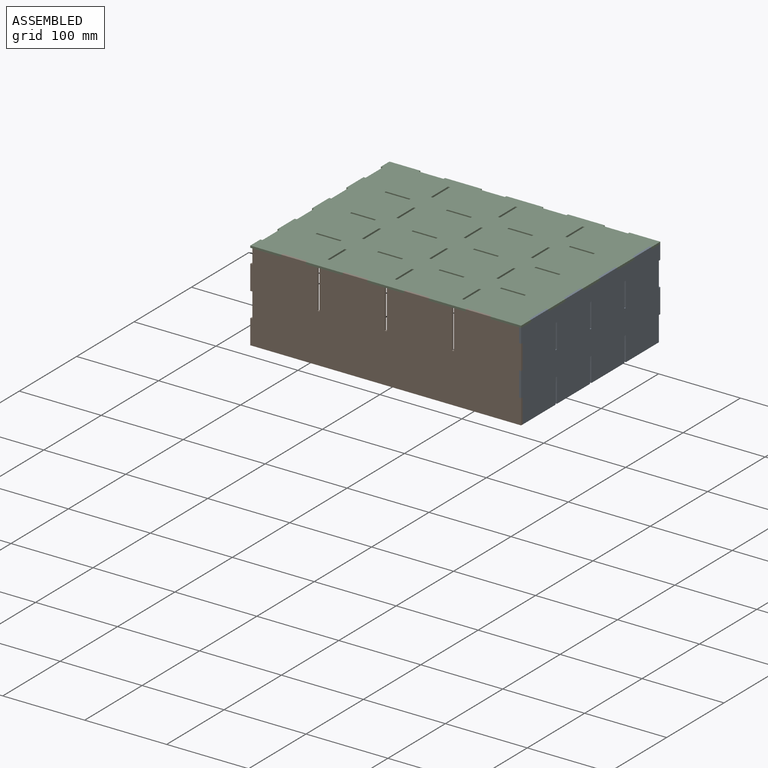
[diagram: assembled view]
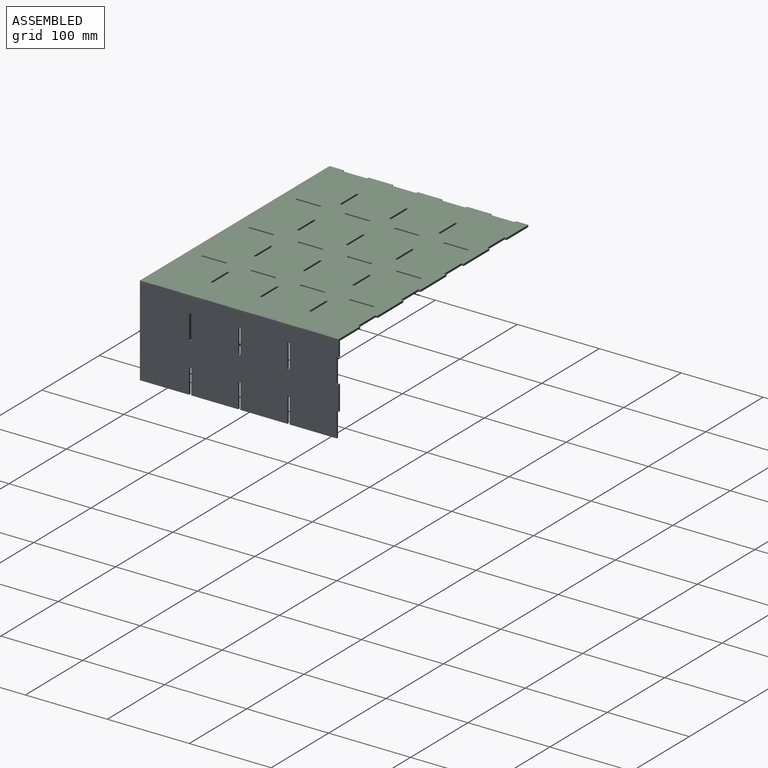
[diagram: assembled view, second angle]
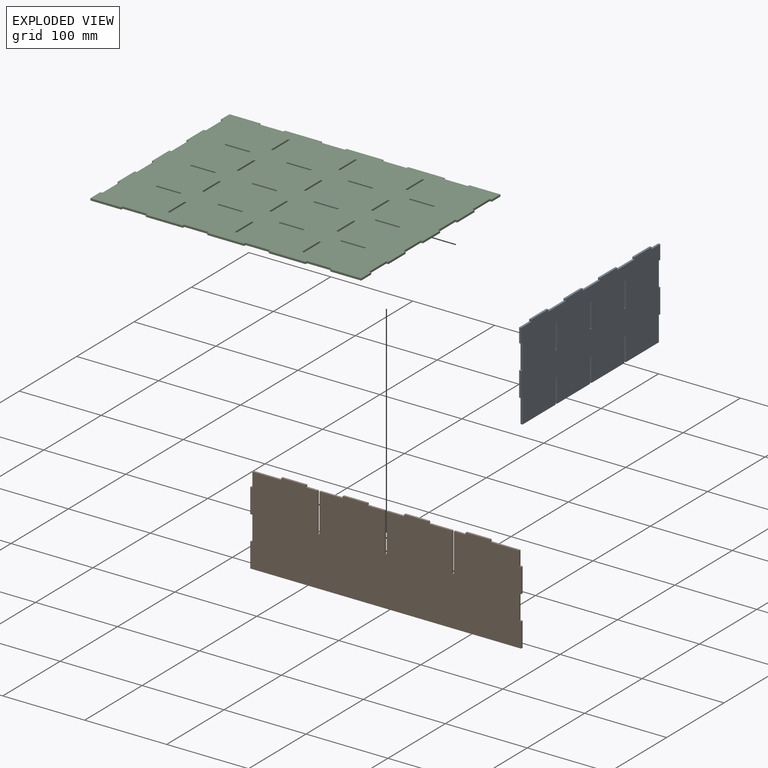
[diagram: exploded view]
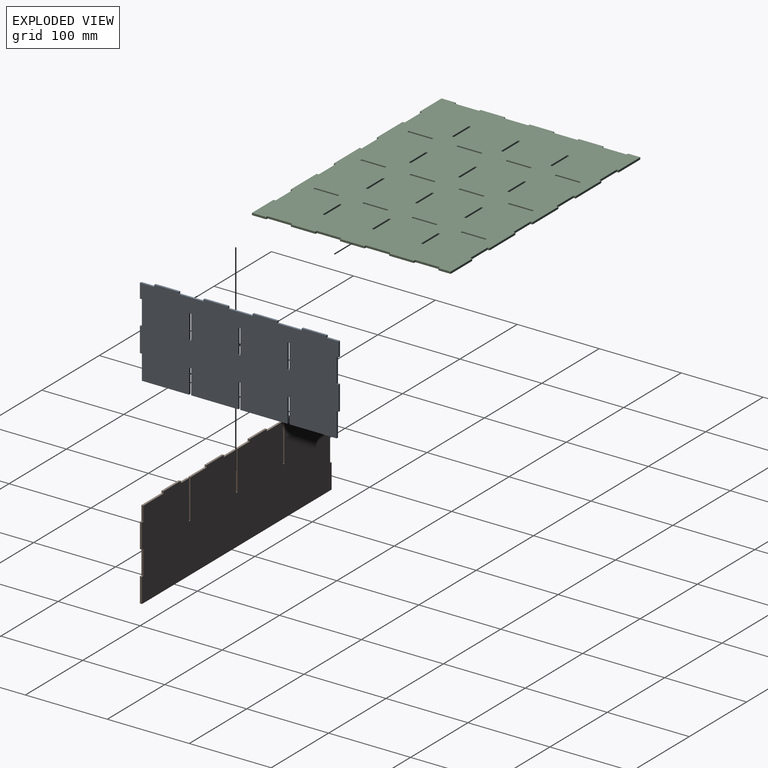
[diagram: exploded view, second angle]
ASSEMBLY  parts=3 mates=2
PART A: 58 faces, bbox 242.5x110x2.5 mm
  f0: plane 2.5x2.5mm, normal (0,1,0), area 6.3mm2, adj f1,f55,f56,f57
  f1: plane 30x2.5mm, normal (-1,0,0), area 75mm2, adj f0,f2,f56,f57
  f2: plane 2.5x2.5mm, normal (0,-1,0), area 6.3mm2, adj f1,f3,f56,f57
  f3: plane 30x2.5mm, normal (-1,0,0), area 75mm2, adj f2,f4,f56,f57
  f4: plane 57.5x2.5mm, normal (0,-1,0), area 143.8mm2, adj f3,f5,f56,f57
  f5: plane 30x2.5mm, normal (1,0,0), area 75mm2, adj f4,f6,f56,f57
  f6: plane 2.5x2.5mm, normal (0,-1,0), area 6.3mm2, adj f5,f7,f56,f57
  f7: plane 30x2.5mm, normal (-1,0,0), area 75mm2, adj f6,f8,f56,f57
  f8: plane 57.5x2.5mm, normal (0,-1,0), area 143.8mm2, adj f7,f9,f56,f57
  f9: plane 30x2.5mm, normal (1,0,0), area 75mm2, adj f8,f10,f56,f57
  f10: plane 2.5x2.5mm, normal (0,-1,0), area 6.2mm2, adj f9,f11,f56,f57
  f11: plane 30x2.5mm, normal (-1,0,0), area 75mm2, adj f10,f12,f56,f57
  f12: plane 57.5x2.5mm, normal (0,-1,0), area 143.8mm2, adj f11,f13,f56,f57
  f13: plane 30x2.5mm, normal (1,0,0), area 75mm2, adj f12,f14,f56,f57
  f14: plane 2.5x2.5mm, normal (0,-1,0), area 6.3mm2, adj f13,f15,f56,f57
  f15: plane 30x2.5mm, normal (-1,0,0), area 75mm2, adj f14,f16,f56,f57
  f16: plane 57.5x2.5mm, normal (0,-1,0), area 143.8mm2, adj f15,f17,f56,f57
  f17: plane 30x2.5mm, normal (1,0,0), area 75mm2, adj f16,f18,f56,f57
  f18: plane 2.5x2.5mm, normal (0,-1,0), area 6.3mm2, adj f17,f19,f56,f57
  f19: plane 30x2.5mm, normal (1,0,0), area 75mm2, adj f18,f20,f56,f57
  f20: plane 2.5x2.5mm, normal (0,1,0), area 6.3mm2, adj f19,f21,f56,f57
  f21: plane 30x2.5mm, normal (1,0,0), area 75mm2, adj f20,f22,f56,f57
  f22: plane 2.5x2.5mm, normal (0,-1,0), area 6.3mm2, adj f21,f23,f56,f57
  f23: plane 17.5x2.5mm, normal (1,0,0), area 43.7mm2, adj f22,f24,f56,f57
  f24: plane 17.5x2.5mm, normal (0,1,0), area 43.8mm2, adj f23,f25,f56,f57
  f25: plane 2.5x2.5mm, normal (1,0,0), area 6.3mm2, adj f24,f26,f56,f57
  f26: plane 30x2.5mm, normal (0,1,0), area 75mm2, adj f25,f27,f56,f57
  f27: plane 2.5x2.5mm, normal (-1,0,0), area 6.3mm2, adj f26,f28,f56,f57
  f28: plane 30x2.5mm, normal (0,1,0), area 75mm2, adj f27,f29,f56,f57
  f29: plane 2.5x2.5mm, normal (1,0,0), area 6.3mm2, adj f28,f30,f56,f57
  f30: plane 30x2.5mm, normal (0,1,0), area 75mm2, adj f29,f31,f56,f57
  f31: plane 2.5x2.5mm, normal (-1,0,0), area 6.3mm2, adj f30,f32,f56,f57
  f32: plane 30x2.5mm, normal (0,1,0), area 75mm2, adj f31,f33,f56,f57
  f33: plane 2.5x2.5mm, normal (1,0,0), area 6.3mm2, adj f32,f34,f56,f57
  f34: plane 30x2.5mm, normal (0,1,0), area 75mm2, adj f33,f35,f56,f57
  f35: plane 2.5x2.5mm, normal (-1,0,0), area 6.3mm2, adj f34,f36,f56,f57
  f36: plane 30x2.5mm, normal (0,1,0), area 75mm2, adj f35,f37,f56,f57
  f37: plane 2.5x2.5mm, normal (1,0,0), area 6.3mm2, adj f36,f38,f56,f57
  f38: plane 30x2.5mm, normal (0,1,0), area 75mm2, adj f37,f39,f56,f57
  f39: plane 2.5x2.5mm, normal (-1,0,0), area 6.3mm2, adj f38,f40,f56,f57
  f40: plane 15x2.5mm, normal (0,1,0), area 37.5mm2, adj f39,f41,f56,f57
  f41: plane 17.5x2.5mm, normal (-1,0,0), area 43.7mm2, adj f40,f42,f56,f57
  f42: plane 2.5x2.5mm, normal (0,-1,0), area 6.3mm2, adj f41,f55,f56,f57
  f43: plane 30x2.5mm, normal (1,0,0), area 75mm2, adj f44,f52,f56,f57
  f44: plane 2.5x2.5mm, normal (0,-1,0), area 6.3mm2, adj f43,f45,f56,f57
  f45: plane 30x2.5mm, normal (-1,0,0), area 75mm2, adj f44,f52,f56,f57
  f46: plane 30x2.5mm, normal (1,0,0), area 75mm2, adj f47,f53,f56,f57
  f47: plane 2.5x2.5mm, normal (0,-1,0), area 6.2mm2, adj f46,f48,f56,f57
  f48: plane 30x2.5mm, normal (-1,0,0), area 75mm2, adj f47,f53,f56,f57
  f49: plane 30x2.5mm, normal (1,0,0), area 75mm2, adj f50,f54,f56,f57
  f50: plane 2.5x2.5mm, normal (0,-1,0), area 6.3mm2, adj f49,f51,f56,f57
  f51: plane 30x2.5mm, normal (-1,0,0), area 75mm2, adj f50,f54,f56,f57
  f52: plane 2.5x2.5mm, normal (0,1,0), area 6.3mm2, adj f43,f45,f56,f57
  f53: plane 2.5x2.5mm, normal (0,1,0), area 6.2mm2, adj f46,f48,f56,f57
  f54: plane 2.5x2.5mm, normal (0,1,0), area 6.3mm2, adj f49,f51,f56,f57
  f55: plane 30x2.5mm, normal (-1,0,0), area 75mm2, adj f0,f42,f56,f57
  f56: plane 242.5x110mm, normal (0,0,1), area 25618.7mm2, adj f0,f1,f2,f3,f4,f5,f6,f7
  f57: plane 242.5x110mm, normal (0,0,-1), area 25618.7mm2, adj f0,f1,f2,f3,f4,f5,f6,f7
PART B: 46 faces, bbox 330.5x110x2.5 mm
  f0: plane 47.5x2.5mm, normal (-1,0,0), area 118.8mm2, adj f1,f43,f44,f45
  f1: plane 2.5x2.5mm, normal (0,1,0), area 6.3mm2, adj f0,f2,f44,f45
  f2: plane 47.5x2.5mm, normal (1,0,0), area 118.8mm2, adj f1,f3,f44,f45
  f3: plane 28.25x2.5mm, normal (0,1,0), area 70.6mm2, adj f2,f4,f44,f45
  f4: plane 2.5x2.5mm, normal (1,0,0), area 6.3mm2, adj f3,f5,f44,f45
  f5: plane 30x2.5mm, normal (0,1,0), area 75mm2, adj f4,f6,f44,f45
  f6: plane 2.5x2.5mm, normal (-1,0,0), area 6.3mm2, adj f5,f7,f44,f45
  f7: plane 21.25x2.5mm, normal (0,1,0), area 53.1mm2, adj f6,f8,f44,f45
  f8: plane 47.5x2.5mm, normal (-1,0,0), area 118.8mm2, adj f7,f9,f44,f45
  f9: plane 2.5x2.5mm, normal (0,1,0), area 6.2mm2, adj f8,f10,f44,f45
  f10: plane 47.5x2.5mm, normal (1,0,0), area 118.8mm2, adj f9,f11,f44,f45
  f11: plane 21.25x2.5mm, normal (0,1,0), area 53.1mm2, adj f10,f12,f44,f45
  f12: plane 2.5x2.5mm, normal (1,0,0), area 6.3mm2, adj f11,f13,f44,f45
  f13: plane 30x2.5mm, normal (0,1,0), area 75mm2, adj f12,f14,f44,f45
  f14: plane 2.5x2.5mm, normal (-1,0,0), area 6.3mm2, adj f13,f15,f44,f45
  f15: plane 28.25x2.5mm, normal (0,1,0), area 70.6mm2, adj f14,f16,f44,f45
  f16: plane 47.5x2.5mm, normal (-1,0,0), area 118.8mm2, adj f15,f17,f44,f45
  f17: plane 2.5x2.5mm, normal (0,1,0), area 6.3mm2, adj f16,f18,f44,f45
  f18: plane 47.5x2.5mm, normal (1,0,0), area 118.8mm2, adj f17,f19,f44,f45
  f19: plane 14.25x2.5mm, normal (0,1,0), area 35.6mm2, adj f18,f20,f44,f45
  f20: plane 2.5x2.5mm, normal (1,0,0), area 6.3mm2, adj f19,f21,f44,f45
  f21: plane 30x2.5mm, normal (0,1,0), area 75mm2, adj f20,f22,f44,f45
  f22: plane 2.5x2.5mm, normal (-1,0,0), area 6.3mm2, adj f21,f23,f44,f45
  f23: plane 35.25x2.5mm, normal (0,1,0), area 88.1mm2, adj f22,f24,f44,f45
  f24: plane 17.5x2.5mm, normal (-1,0,0), area 43.7mm2, adj f23,f25,f44,f45
  f25: plane 2.5x2.5mm, normal (0,1,0), area 6.3mm2, adj f24,f26,f44,f45
  f26: plane 30x2.5mm, normal (-1,0,0), area 75mm2, adj f25,f27,f44,f45
  f27: plane 2.5x2.5mm, normal (0,-1,0), area 6.3mm2, adj f26,f28,f44,f45
  f28: plane 30x2.5mm, normal (-1,0,0), area 75mm2, adj f27,f29,f44,f45
  f29: plane 2.5x2.5mm, normal (0,1,0), area 6.3mm2, adj f28,f30,f44,f45
  f30: plane 30x2.5mm, normal (-1,0,0), area 75mm2, adj f29,f31,f44,f45
  f31: plane 330.5x2.5mm, normal (0,-1,0), area 826.2mm2, adj f30,f32,f44,f45
  f32: plane 30x2.5mm, normal (1,0,0), area 75mm2, adj f31,f33,f44,f45
  f33: plane 2.5x2.5mm, normal (0,1,0), area 6.3mm2, adj f32,f34,f44,f45
  f34: plane 30x2.5mm, normal (1,0,0), area 75mm2, adj f33,f35,f44,f45
  f35: plane 2.5x2.5mm, normal (0,-1,0), area 6.3mm2, adj f34,f36,f44,f45
  f36: plane 30x2.5mm, normal (1,0,0), area 75mm2, adj f35,f37,f44,f45
  f37: plane 2.5x2.5mm, normal (0,1,0), area 6.3mm2, adj f36,f38,f44,f45
  f38: plane 17.5x2.5mm, normal (1,0,0), area 43.7mm2, adj f37,f39,f44,f45
  f39: plane 35.25x2.5mm, normal (0,1,0), area 88.1mm2, adj f38,f40,f44,f45
  f40: plane 2.5x2.5mm, normal (1,0,0), area 6.3mm2, adj f39,f41,f44,f45
  f41: plane 30x2.5mm, normal (0,1,0), area 75mm2, adj f40,f42,f44,f45
  f42: plane 2.5x2.5mm, normal (-1,0,0), area 6.3mm2, adj f41,f43,f44,f45
  f43: plane 14.25x2.5mm, normal (0,1,0), area 35.6mm2, adj f0,f42,f44,f45
  f44: plane 330.5x110mm, normal (0,0,1), area 35235mm2, adj f0,f1,f2,f3,f4,f5,f6,f7
  f45: plane 330.5x110mm, normal (0,0,-1), area 35235mm2, adj f0,f1,f2,f3,f4,f5,f6,f7
PART C: 166 faces, bbox 330.5x242.5x2.5 mm
  f0: plane 2.5x2.5mm, normal (0,1,0), area 6.3mm2, adj f1,f163,f164,f165
  f1: plane 30x2.5mm, normal (1,0,0), area 75mm2, adj f0,f2,f164,f165
  f2: plane 2.5x2.5mm, normal (0,-1,0), area 6.3mm2, adj f1,f163,f164,f165
  f3: plane 2.5x2.5mm, normal (0,1,0), area 6.2mm2, adj f4,f139,f164,f165
  f4: plane 30x2.5mm, normal (1,0,0), area 75mm2, adj f3,f5,f164,f165
  f5: plane 2.5x2.5mm, normal (0,-1,0), area 6.2mm2, adj f4,f139,f164,f165
  f6: plane 2.5x2.5mm, normal (0,1,0), area 6.3mm2, adj f7,f140,f164,f165
  f7: plane 30x2.5mm, normal (1,0,0), area 75mm2, adj f6,f8,f164,f165
  f8: plane 2.5x2.5mm, normal (0,-1,0), area 6.3mm2, adj f7,f140,f164,f165
  f9: plane 2.5x2.5mm, normal (1,0,0), area 6.3mm2, adj f10,f141,f164,f165
  f10: plane 30x2.5mm, normal (0,-1,0), area 75mm2, adj f9,f11,f164,f165
  f11: plane 2.5x2.5mm, normal (-1,0,0), area 6.3mm2, adj f10,f141,f164,f165
  f12: plane 2.5x2.5mm, normal (1,0,0), area 6.2mm2, adj f13,f142,f164,f165
  f13: plane 30x2.5mm, normal (0,-1,0), area 75mm2, adj f12,f14,f164,f165
  f14: plane 2.5x2.5mm, normal (-1,0,0), area 6.2mm2, adj f13,f142,f164,f165
  f15: plane 2.5x2.5mm, normal (1,0,0), area 6.3mm2, adj f16,f143,f164,f165
  f16: plane 30x2.5mm, normal (0,-1,0), area 75mm2, adj f15,f17,f164,f165
  f17: plane 2.5x2.5mm, normal (-1,0,0), area 6.3mm2, adj f16,f143,f164,f165
  f18: plane 2.5x2.5mm, normal (1,0,0), area 6.3mm2, adj f19,f144,f164,f165
  f19: plane 30x2.5mm, normal (0,-1,0), area 75mm2, adj f18,f20,f164,f165
  f20: plane 2.5x2.5mm, normal (-1,0,0), area 6.3mm2, adj f19,f144,f164,f165
  f21: plane 2.5x2.5mm, normal (1,0,0), area 6.2mm2, adj f22,f145,f164,f165
  f22: plane 30x2.5mm, normal (0,-1,0), area 75mm2, adj f21,f23,f164,f165
  f23: plane 2.5x2.5mm, normal (-1,0,0), area 6.2mm2, adj f22,f145,f164,f165
  f24: plane 2.5x2.5mm, normal (1,0,0), area 6.3mm2, adj f25,f146,f164,f165
  f25: plane 30x2.5mm, normal (0,-1,0), area 75mm2, adj f24,f26,f164,f165
  f26: plane 2.5x2.5mm, normal (-1,0,0), area 6.3mm2, adj f25,f146,f164,f165
  f27: plane 2.5x2.5mm, normal (1,0,0), area 6.3mm2, adj f28,f147,f164,f165
  f28: plane 30x2.5mm, normal (0,-1,0), area 75mm2, adj f27,f29,f164,f165
  f29: plane 2.5x2.5mm, normal (-1,0,0), area 6.3mm2, adj f28,f147,f164,f165
  f30: plane 2.5x2.5mm, normal (1,0,0), area 6.2mm2, adj f31,f148,f164,f165
  f31: plane 30x2.5mm, normal (0,-1,0), area 75mm2, adj f30,f32,f164,f165
  f32: plane 2.5x2.5mm, normal (-1,0,0), area 6.2mm2, adj f31,f148,f164,f165
  f33: plane 2.5x2.5mm, normal (1,0,0), area 6.3mm2, adj f34,f149,f164,f165
  f34: plane 30x2.5mm, normal (0,-1,0), area 75mm2, adj f33,f35,f164,f165
  f35: plane 2.5x2.5mm, normal (-1,0,0), area 6.3mm2, adj f34,f149,f164,f165
  f36: plane 2.5x2.5mm, normal (1,0,0), area 6.3mm2, adj f37,f150,f164,f165
  f37: plane 30x2.5mm, normal (0,-1,0), area 75mm2, adj f36,f38,f164,f165
  f38: plane 2.5x2.5mm, normal (-1,0,0), area 6.3mm2, adj f37,f150,f164,f165
  f39: plane 2.5x2.5mm, normal (1,0,0), area 6.2mm2, adj f40,f151,f164,f165
  f40: plane 30x2.5mm, normal (0,-1,0), area 75mm2, adj f39,f41,f164,f165
  f41: plane 2.5x2.5mm, normal (-1,0,0), area 6.2mm2, adj f40,f151,f164,f165
  f42: plane 2.5x2.5mm, normal (1,0,0), area 6.3mm2, adj f43,f152,f164,f165
  f43: plane 30x2.5mm, normal (0,-1,0), area 75mm2, adj f42,f44,f164,f165
  f44: plane 2.5x2.5mm, normal (-1,0,0), area 6.3mm2, adj f43,f152,f164,f165
  f45: plane 2.5x2.5mm, normal (0,1,0), area 6.3mm2, adj f46,f153,f164,f165
  f46: plane 30x2.5mm, normal (1,0,0), area 75mm2, adj f45,f47,f164,f165
  f47: plane 2.5x2.5mm, normal (0,-1,0), area 6.3mm2, adj f46,f153,f164,f165
  f48: plane 2.5x2.5mm, normal (0,1,0), area 6.3mm2, adj f49,f154,f164,f165
  f49: plane 30x2.5mm, normal (1,0,0), area 75mm2, adj f48,f50,f164,f165
  f50: plane 2.5x2.5mm, normal (0,-1,0), area 6.3mm2, adj f49,f154,f164,f165
  f51: plane 2.5x2.5mm, normal (0,1,0), area 6.3mm2, adj f52,f155,f164,f165
  f52: plane 30x2.5mm, normal (1,0,0), area 75mm2, adj f51,f53,f164,f165
  f53: plane 2.5x2.5mm, normal (0,-1,0), area 6.3mm2, adj f52,f155,f164,f165
  f54: plane 2.5x2.5mm, normal (0,1,0), area 6.2mm2, adj f55,f156,f164,f165
  f55: plane 30x2.5mm, normal (1,0,0), area 75mm2, adj f54,f56,f164,f165
  f56: plane 2.5x2.5mm, normal (0,-1,0), area 6.2mm2, adj f55,f156,f164,f165
  f57: plane 2.5x2.5mm, normal (0,1,0), area 6.2mm2, adj f58,f157,f164,f165
  f58: plane 30x2.5mm, normal (1,0,0), area 75mm2, adj f57,f59,f164,f165
  f59: plane 2.5x2.5mm, normal (0,-1,0), area 6.2mm2, adj f58,f157,f164,f165
  f60: plane 2.5x2.5mm, normal (0,1,0), area 6.2mm2, adj f61,f158,f164,f165
  f61: plane 30x2.5mm, normal (1,0,0), area 75mm2, adj f60,f62,f164,f165
  f62: plane 2.5x2.5mm, normal (0,-1,0), area 6.2mm2, adj f61,f158,f164,f165
  f63: plane 2.5x2.5mm, normal (0,1,0), area 6.3mm2, adj f64,f159,f164,f165
  f64: plane 30x2.5mm, normal (1,0,0), area 75mm2, adj f63,f65,f164,f165
  f65: plane 2.5x2.5mm, normal (0,-1,0), area 6.3mm2, adj f64,f159,f164,f165
  f66: plane 2.5x2.5mm, normal (0,1,0), area 6.3mm2, adj f67,f160,f164,f165
  f67: plane 30x2.5mm, normal (1,0,0), area 75mm2, adj f66,f68,f164,f165
  f68: plane 2.5x2.5mm, normal (0,-1,0), area 6.3mm2, adj f67,f160,f164,f165
  f69: plane 2.5x2.5mm, normal (0,1,0), area 6.3mm2, adj f70,f161,f164,f165
  f70: plane 30x2.5mm, normal (1,0,0), area 75mm2, adj f69,f71,f164,f165
  f71: plane 2.5x2.5mm, normal (0,-1,0), area 6.3mm2, adj f70,f161,f164,f165
  f72: plane 2.5x2.5mm, normal (1,0,0), area 6.3mm2, adj f73,f162,f164,f165
  f73: plane 37.75x2.5mm, normal (0,1,0), area 94.4mm2, adj f72,f74,f164,f165
  f74: plane 15x2.5mm, normal (-1,0,0), area 37.5mm2, adj f73,f75,f164,f165
  f75: plane 2.5x2.5mm, normal (0,-1,0), area 6.3mm2, adj f74,f76,f164,f165
  f76: plane 30x2.5mm, normal (-1,0,0), area 75mm2, adj f75,f77,f164,f165
  f77: plane 2.5x2.5mm, normal (0,1,0), area 6.3mm2, adj f76,f78,f164,f165
  f78: plane 30x2.5mm, normal (-1,0,0), area 75mm2, adj f77,f79,f164,f165
  f79: plane 2.5x2.5mm, normal (0,-1,0), area 6.3mm2, adj f78,f80,f164,f165
  f80: plane 30x2.5mm, normal (-1,0,0), area 75mm2, adj f79,f81,f164,f165
  f81: plane 2.5x2.5mm, normal (0,1,0), area 6.3mm2, adj f80,f82,f164,f165
  f82: plane 30x2.5mm, normal (-1,0,0), area 75mm2, adj f81,f83,f164,f165
  f83: plane 2.5x2.5mm, normal (0,-1,0), area 6.3mm2, adj f82,f84,f164,f165
  f84: plane 30x2.5mm, normal (-1,0,0), area 75mm2, adj f83,f85,f164,f165
  f85: plane 2.5x2.5mm, normal (0,1,0), area 6.3mm2, adj f84,f86,f164,f165
  f86: plane 30x2.5mm, normal (-1,0,0), area 75mm2, adj f85,f87,f164,f165
  f87: plane 2.5x2.5mm, normal (0,-1,0), area 6.3mm2, adj f86,f88,f164,f165
  f88: plane 30x2.5mm, normal (-1,0,0), area 75mm2, adj f87,f89,f164,f165
  f89: plane 2.5x2.5mm, normal (0,1,0), area 6.3mm2, adj f88,f90,f164,f165
  f90: plane 17.5x2.5mm, normal (-1,0,0), area 43.8mm2, adj f89,f91,f164,f165
  f91: plane 37.75x2.5mm, normal (0,-1,0), area 94.4mm2, adj f90,f92,f164,f165
  f92: plane 2.5x2.5mm, normal (1,0,0), area 6.3mm2, adj f91,f93,f164,f165
  f93: plane 30x2.5mm, normal (0,-1,0), area 75mm2, adj f92,f94,f164,f165
  f94: plane 2.5x2.5mm, normal (-1,0,0), area 6.3mm2, adj f93,f95,f164,f165
  f95: plane 45x2.5mm, normal (0,-1,0), area 112.5mm2, adj f94,f96,f164,f165
  f96: plane 2.5x2.5mm, normal (1,0,0), area 6.3mm2, adj f95,f97,f164,f165
  f97: plane 30x2.5mm, normal (0,-1,0), area 75mm2, adj f96,f98,f164,f165
  f98: plane 2.5x2.5mm, normal (-1,0,0), area 6.3mm2, adj f97,f99,f164,f165
  f99: plane 45x2.5mm, normal (0,-1,0), area 112.5mm2, adj f98,f100,f164,f165
  f100: plane 2.5x2.5mm, normal (1,0,0), area 6.3mm2, adj f99,f101,f164,f165
  f101: plane 30x2.5mm, normal (0,-1,0), area 75mm2, adj f100,f102,f164,f165
  f102: plane 2.5x2.5mm, normal (-1,0,0), area 6.3mm2, adj f101,f103,f164,f165
  f103: plane 45x2.5mm, normal (0,-1,0), area 112.5mm2, adj f102,f104,f164,f165
  f104: plane 2.5x2.5mm, normal (1,0,0), area 6.3mm2, adj f103,f105,f164,f165
  f105: plane 30x2.5mm, normal (0,-1,0), area 75mm2, adj f104,f106,f164,f165
  f106: plane 2.5x2.5mm, normal (-1,0,0), area 6.3mm2, adj f105,f107,f164,f165
  f107: plane 37.75x2.5mm, normal (0,-1,0), area 94.4mm2, adj f106,f108,f164,f165
  f108: plane 17.5x2.5mm, normal (1,0,0), area 43.8mm2, adj f107,f109,f164,f165
  f109: plane 2.5x2.5mm, normal (0,1,0), area 6.3mm2, adj f108,f110,f164,f165
  f110: plane 30x2.5mm, normal (1,0,0), area 75mm2, adj f109,f111,f164,f165
  f111: plane 2.5x2.5mm, normal (0,-1,0), area 6.3mm2, adj f110,f112,f164,f165
  f112: plane 30x2.5mm, normal (1,0,0), area 75mm2, adj f111,f113,f164,f165
  f113: plane 2.5x2.5mm, normal (0,1,0), area 6.3mm2, adj f112,f114,f164,f165
  f114: plane 30x2.5mm, normal (1,0,0), area 75mm2, adj f113,f115,f164,f165
  f115: plane 2.5x2.5mm, normal (0,-1,0), area 6.3mm2, adj f114,f116,f164,f165
  f116: plane 30x2.5mm, normal (1,0,0), area 75mm2, adj f115,f117,f164,f165
  f117: plane 2.5x2.5mm, normal (0,1,0), area 6.3mm2, adj f116,f118,f164,f165
  f118: plane 30x2.5mm, normal (1,0,0), area 75mm2, adj f117,f119,f164,f165
  f119: plane 2.5x2.5mm, normal (0,-1,0), area 6.3mm2, adj f118,f120,f164,f165
  f120: plane 30x2.5mm, normal (1,0,0), area 75mm2, adj f119,f121,f164,f165
  f121: plane 2.5x2.5mm, normal (0,1,0), area 6.3mm2, adj f120,f122,f164,f165
  f122: plane 30x2.5mm, normal (1,0,0), area 75mm2, adj f121,f123,f164,f165
  f123: plane 2.5x2.5mm, normal (0,-1,0), area 6.3mm2, adj f122,f124,f164,f165
  f124: plane 15x2.5mm, normal (1,0,0), area 37.5mm2, adj f123,f125,f164,f165
  f125: plane 37.75x2.5mm, normal (0,1,0), area 94.4mm2, adj f124,f126,f164,f165
  f126: plane 2.5x2.5mm, normal (-1,0,0), area 6.3mm2, adj f125,f127,f164,f165
  f127: plane 30x2.5mm, normal (0,1,0), area 75mm2, adj f126,f128,f164,f165
  f128: plane 2.5x2.5mm, normal (1,0,0), area 6.3mm2, adj f127,f129,f164,f165
  f129: plane 45x2.5mm, normal (0,1,0), area 112.5mm2, adj f128,f130,f164,f165
  f130: plane 2.5x2.5mm, normal (-1,0,0), area 6.3mm2, adj f129,f131,f164,f165
  f131: plane 30x2.5mm, normal (0,1,0), area 75mm2, adj f130,f132,f164,f165
  f132: plane 2.5x2.5mm, normal (1,0,0), area 6.3mm2, adj f131,f133,f164,f165
  f133: plane 45x2.5mm, normal (0,1,0), area 112.5mm2, adj f132,f134,f164,f165
  f134: plane 2.5x2.5mm, normal (-1,0,0), area 6.3mm2, adj f133,f135,f164,f165
  f135: plane 30x2.5mm, normal (0,1,0), area 75mm2, adj f134,f136,f164,f165
  f136: plane 2.5x2.5mm, normal (1,0,0), area 6.3mm2, adj f135,f137,f164,f165
  f137: plane 45x2.5mm, normal (0,1,0), area 112.5mm2, adj f136,f138,f164,f165
  f138: plane 2.5x2.5mm, normal (-1,0,0), area 6.3mm2, adj f137,f162,f164,f165
  f139: plane 30x2.5mm, normal (-1,0,0), area 75mm2, adj f3,f5,f164,f165
  f140: plane 30x2.5mm, normal (-1,0,0), area 75mm2, adj f6,f8,f164,f165
  f141: plane 30x2.5mm, normal (0,1,0), area 75mm2, adj f9,f11,f164,f165
  f142: plane 30x2.5mm, normal (0,1,0), area 75mm2, adj f12,f14,f164,f165
  f143: plane 30x2.5mm, normal (0,1,0), area 75mm2, adj f15,f17,f164,f165
  f144: plane 30x2.5mm, normal (0,1,0), area 75mm2, adj f18,f20,f164,f165
  f145: plane 30x2.5mm, normal (0,1,0), area 75mm2, adj f21,f23,f164,f165
  f146: plane 30x2.5mm, normal (0,1,0), area 75mm2, adj f24,f26,f164,f165
  f147: plane 30x2.5mm, normal (0,1,0), area 75mm2, adj f27,f29,f164,f165
  f148: plane 30x2.5mm, normal (0,1,0), area 75mm2, adj f30,f32,f164,f165
  f149: plane 30x2.5mm, normal (0,1,0), area 75mm2, adj f33,f35,f164,f165
  f150: plane 30x2.5mm, normal (0,1,0), area 75mm2, adj f36,f38,f164,f165
  f151: plane 30x2.5mm, normal (0,1,0), area 75mm2, adj f39,f41,f164,f165
  f152: plane 30x2.5mm, normal (0,1,0), area 75mm2, adj f42,f44,f164,f165
  f153: plane 30x2.5mm, normal (-1,0,0), area 75mm2, adj f45,f47,f164,f165
  f154: plane 30x2.5mm, normal (-1,0,0), area 75mm2, adj f48,f50,f164,f165
  f155: plane 30x2.5mm, normal (-1,0,0), area 75mm2, adj f51,f53,f164,f165
  f156: plane 30x2.5mm, normal (-1,0,0), area 75mm2, adj f54,f56,f164,f165
  f157: plane 30x2.5mm, normal (-1,0,0), area 75mm2, adj f57,f59,f164,f165
  f158: plane 30x2.5mm, normal (-1,0,0), area 75mm2, adj f60,f62,f164,f165
  f159: plane 30x2.5mm, normal (-1,0,0), area 75mm2, adj f63,f65,f164,f165
  f160: plane 30x2.5mm, normal (-1,0,0), area 75mm2, adj f66,f68,f164,f165
  f161: plane 30x2.5mm, normal (-1,0,0), area 75mm2, adj f69,f71,f164,f165
  f162: plane 30x2.5mm, normal (0,1,0), area 75mm2, adj f72,f138,f164,f165
  f163: plane 30x2.5mm, normal (-1,0,0), area 75mm2, adj f0,f2,f164,f165
  f164: plane 330.5x242.5mm, normal (0,0,1), area 77146.2mm2, adj f0,f1,f2,f3,f4,f5,f6,f7
  f165: plane 330.5x242.5mm, normal (0,0,-1), area 77146.2mm2, adj f0,f1,f2,f3,f4,f5,f6,f7
PLACE A rot(axis=(0.58,-0.58,-0.58),120deg) t=(168.24,-1.24,-53.65)mm
PLACE B rot(axis=(1,0,0),90deg) t=(2.99,-119.99,-53.65)mm
PLACE C t=(2.99,-1.24,-1.15)mm
MATE fastened B.f13 <-> C.f164  axis (0,0,1) through (-34.51,-119.99,1.35)mm
MATE fastened C.f116 <-> A.f57  axis (1,0,0) through (168.24,0.01,-1.15)mm
